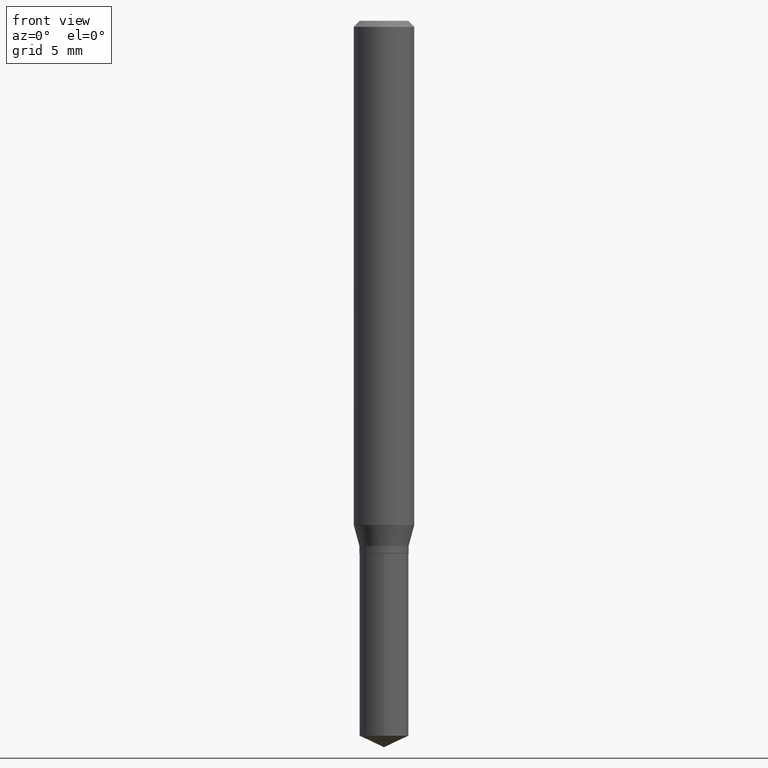
[diagram: clean part render]
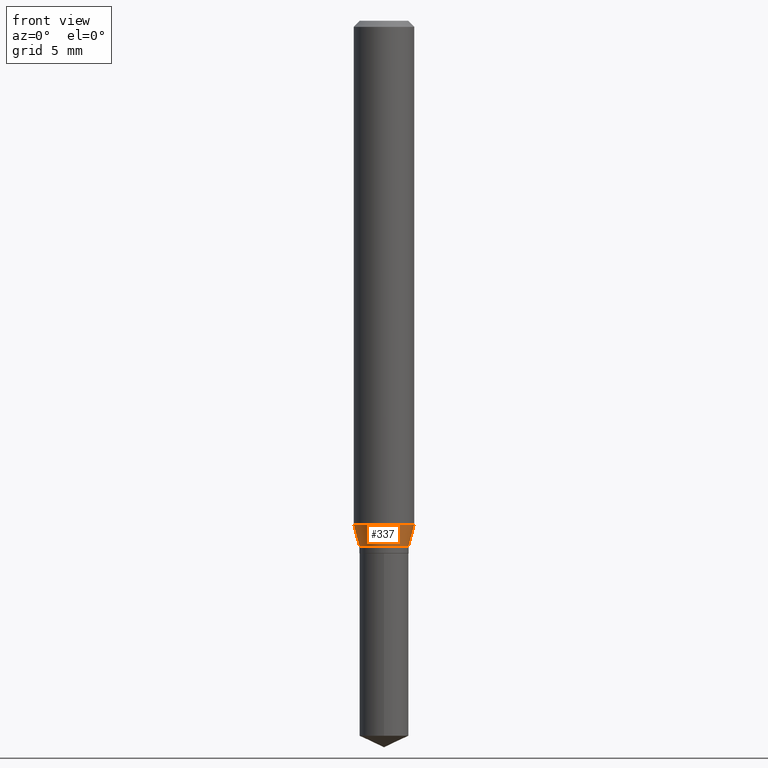
[diagram: same view with one face highlighted and labeled with its STEP entity id]
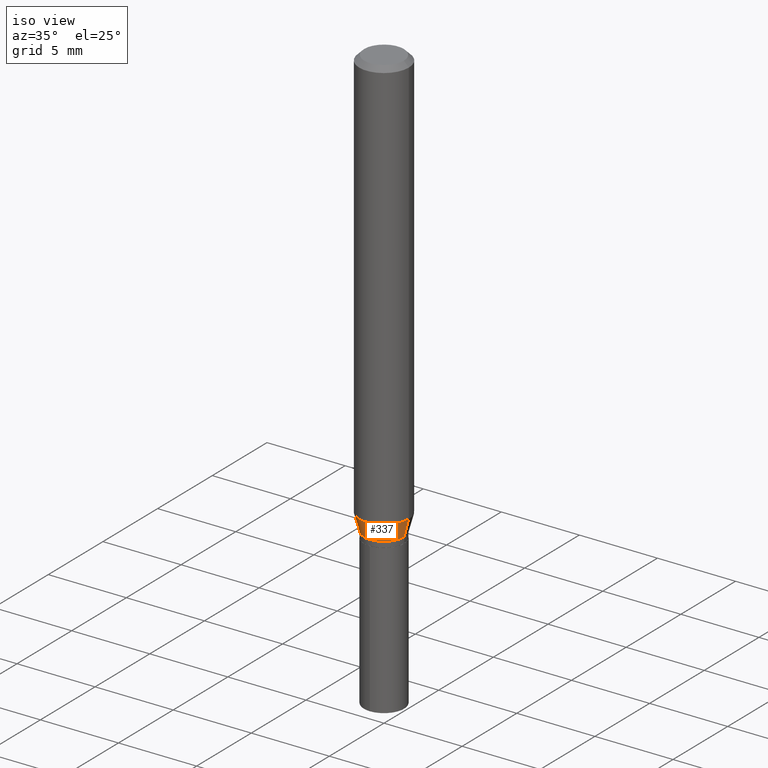
[diagram: same view with one face highlighted and labeled with its STEP entity id]
A machine part, front view. The second image highlights one B-rep face of the part: STEP entity #337.
A second angle (iso view) of the same face is appended — the face is thin or edge-on in the first view.
In plain terms, the highlighted conical surface has half-angle 15 deg.
Its self-contained STEP definition (entity closure, byte-faithful):
#12 = AXIS2_PLACEMENT_3D ( 'NONE', #420, #34, #83 ) ;
#22 = CIRCLE ( 'NONE', #241, 0.05075000000000000344 ) ;
#34 = DIRECTION ( 'NONE',  ( -2.445468806185136597E-29, 3.491481338843145583E-15, 1.000000000000000000 ) ) ;
#58 = EDGE_CURVE ( 'NONE', #490, #297, #226, .T. ) ;
#68 = ORIENTED_EDGE ( 'NONE', *, *, #58, .F. ) ;
#71 = AXIS2_PLACEMENT_3D ( 'NONE', #399, #245, #298 ) ;
#83 = DIRECTION ( 'NONE',  ( 1.000000000000000000, -6.982962677686264344E-15, 0.000000000000000000 ) ) ;
#103 = DIRECTION ( 'NONE',  ( -2.445468806185136597E-29, 3.491481338843145583E-15, 1.000000000000000000 ) ) ;
#129 = VERTEX_POINT ( 'NONE', #243 ) ;
#158 = CARTESIAN_POINT ( 'NONE',  ( -0.06250000000000012490, -3.190362713961645999E-15, -1.040948403011065615 ) ) ;
#161 = CONICAL_SURFACE ( 'NONE', #71, 0.05075000000000000344, 0.2617993877991501850 ) ;
#166 = LINE ( 'NONE', #466, #182 ) ;
#178 = FACE_OUTER_BOUND ( 'NONE', #187, .T. ) ;
#182 = VECTOR ( 'NONE', #206, 39.37007874015748143 ) ;
#187 = EDGE_LOOP ( 'NONE', ( #429, #367, #470, #68 ) ) ;
#206 = DIRECTION ( 'NONE',  ( 0.2588190451025214611, 1.565188264969620982E-15, 0.9659258262890679791 ) ) ;
#216 = EDGE_CURVE ( 'NONE', #391, #490, #423, .T. ) ;
#217 = CARTESIAN_POINT ( 'NONE',  ( 2.652844560949636603E-29, -3.787558956377044815E-15, -1.084800000000000209 ) ) ;
#221 = EDGE_CURVE ( 'NONE', #129, #297, #166, .T. ) ;
#222 = CARTESIAN_POINT ( 'NONE',  ( 0.06250000000000012490, -4.070887091167102256E-15, -1.040948403011065615 ) ) ;
#226 = CIRCLE ( 'NONE', #12, 0.06250000000000012490 ) ;
#241 = AXIS2_PLACEMENT_3D ( 'NONE', #217, #103, #335 ) ;
#243 = CARTESIAN_POINT ( 'NONE',  ( 0.05075000000000000344, -4.141944312269623450E-15, -1.084800000000000209 ) ) ;
#245 = DIRECTION ( 'NONE',  ( -2.445468806185136597E-29, 3.491481338843145583E-15, 1.000000000000000000 ) ) ;
#286 = CARTESIAN_POINT ( 'NONE',  ( -0.05075000000000000344, -3.452620905819291134E-15, -1.084800000000000209 ) ) ;
#297 = VERTEX_POINT ( 'NONE', #222 ) ;
#298 = DIRECTION ( 'NONE',  ( 1.000000000000000000, -6.982962677686270655E-15, 0.000000000000000000 ) ) ;
#323 = EDGE_CURVE ( 'NONE', #391, #129, #22, .T. ) ;
#335 = DIRECTION ( 'NONE',  ( 1.000000000000000000, -6.982962677686270655E-15, 0.000000000000000000 ) ) ;
#337 = ADVANCED_FACE ( 'NONE', ( #178 ), #161, .T. ) ;
#367 = ORIENTED_EDGE ( 'NONE', *, *, #323, .T. ) ;
#370 = VECTOR ( 'NONE', #467, 39.37007874015748143 ) ;
#391 = VERTEX_POINT ( 'NONE', #286 ) ;
#399 = CARTESIAN_POINT ( 'NONE',  ( 2.652844560949636603E-29, -3.787558956377044815E-15, -1.084800000000000209 ) ) ;
#420 = CARTESIAN_POINT ( 'NONE',  ( 2.545606848411795149E-29, -3.634451923811709009E-15, -1.040948403011065615 ) ) ;
#423 = LINE ( 'NONE', #460, #370 ) ;
#429 = ORIENTED_EDGE ( 'NONE', *, *, #216, .F. ) ;
#460 = CARTESIAN_POINT ( 'NONE',  ( -0.05075000000000000344, -3.426958517978794242E-15, -1.084800000000000209 ) ) ;
#466 = CARTESIAN_POINT ( 'NONE',  ( 0.05075000000000000344, -4.141944312269623450E-15, -1.084800000000000209 ) ) ;
#467 = DIRECTION ( 'NONE',  ( -0.2588190451025214611, 5.211531920934550253E-15, 0.9659258262890679791 ) ) ;
#470 = ORIENTED_EDGE ( 'NONE', *, *, #221, .T. ) ;
#490 = VERTEX_POINT ( 'NONE', #158 ) ;